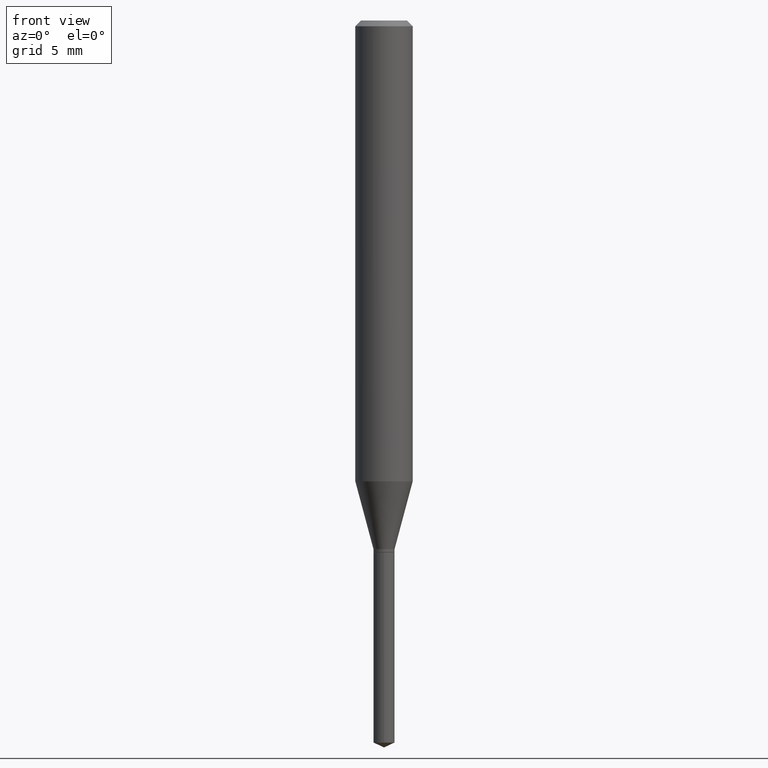
[diagram: clean part render]
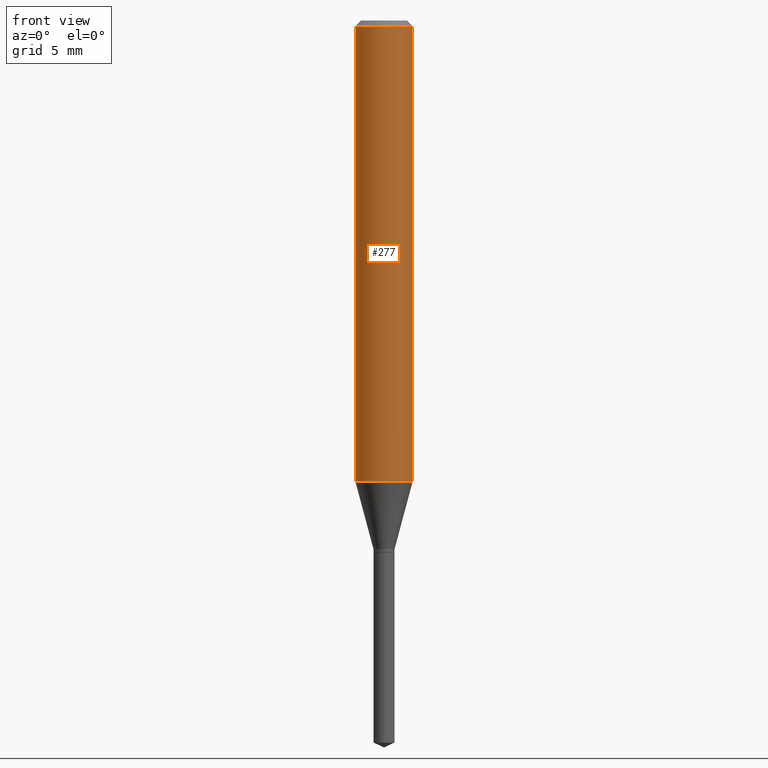
[diagram: same view with one face highlighted and labeled with its STEP entity id]
A machine part, front view. The second image highlights one B-rep face of the part: STEP entity #277.
In plain terms, the highlighted cylindrical surface (edge-blend (fillet) strip) has radius 1.4999 mm, axis along (-0, 0, 1).
Its self-contained STEP definition (entity closure, byte-faithful):
#68 = DIRECTION ( 'NONE',  ( -2.445468806185136597E-29, 3.491481338843145583E-15, 1.000000000000000000 ) ) ;
#80 = LINE ( 'NONE', #453, #218 ) ;
#101 = AXIS2_PLACEMENT_3D ( 'NONE', #113, #477, #141 ) ;
#108 = CARTESIAN_POINT ( 'NONE',  ( 2.888098660104664642E-31, -4.123439461173780879E-17, -0.01181000000000007565 ) ) ;
#113 = CARTESIAN_POINT ( 'NONE',  ( 2.319334703774938561E-29, -3.311395269602319629E-15, -0.9484212997969236891 ) ) ;
#139 = DIRECTION ( 'NONE',  ( 1.000000000000000000, -6.982962677686266711E-15, 4.876176775795935793E-29 ) ) ;
#141 = DIRECTION ( 'NONE',  ( 1.000000000000000000, -6.982962677686268288E-15, 0.000000000000000000 ) ) ;
#142 = VERTEX_POINT ( 'NONE', #357 ) ;
#147 = CARTESIAN_POINT ( 'NONE',  ( 0.05905000000000010241, -3.723739215719694549E-15, -0.9484212997969236891 ) ) ;
#150 = VERTEX_POINT ( 'NONE', #428 ) ;
#183 = ORIENTED_EDGE ( 'NONE', *, *, #395, .T. ) ;
#184 = DIRECTION ( 'NONE',  ( 1.000000000000000000, -6.982962677686268288E-15, 0.000000000000000000 ) ) ;
#207 = FACE_OUTER_BOUND ( 'NONE', #214, .T. ) ;
#212 = ORIENTED_EDGE ( 'NONE', *, *, #266, .F. ) ;
#214 = EDGE_LOOP ( 'NONE', ( #212, #321, #183, #402 ) ) ;
#218 = VECTOR ( 'NONE', #257, 39.37007874015748143 ) ;
#229 = AXIS2_PLACEMENT_3D ( 'NONE', #108, #68, #184 ) ;
#257 = DIRECTION ( 'NONE',  ( -2.445468806185136877E-29, 3.491481338843145188E-15, 1.000000000000000000 ) ) ;
#266 = EDGE_CURVE ( 'NONE', #142, #150, #329, .T. ) ;
#277 = ADVANCED_FACE ( 'NONE', ( #207 ), #369, .T. ) ;
#310 = VERTEX_POINT ( 'NONE', #407 ) ;
#314 = AXIS2_PLACEMENT_3D ( 'NONE', #489, #330, #139 ) ;
#321 = ORIENTED_EDGE ( 'NONE', *, *, #377, .T. ) ;
#327 = CARTESIAN_POINT ( 'NONE',  ( -0.05905000000000005383, 4.195754854663395423E-16, -2.904631170795524694E-30 ) ) ;
#329 = LINE ( 'NONE', #327, #355 ) ;
#330 = DIRECTION ( 'NONE',  ( -2.445468806185136597E-29, 3.491481338843145583E-15, 1.000000000000000000 ) ) ;
#355 = VECTOR ( 'NONE', #444, 39.37007874015748143 ) ;
#357 = CARTESIAN_POINT ( 'NONE',  ( -0.05905000000000010241, -2.891819784135979347E-15, -0.9484212997969236891 ) ) ;
#361 = EDGE_CURVE ( 'NONE', #150, #310, #461, .T. ) ;
#363 = VERTEX_POINT ( 'NONE', #147 ) ;
#369 = CYLINDRICAL_SURFACE ( 'NONE', #314, 0.05905000000000005383 ) ;
#377 = EDGE_CURVE ( 'NONE', #142, #363, #452, .T. ) ;
#395 = EDGE_CURVE ( 'NONE', #363, #310, #80, .T. ) ;
#402 = ORIENTED_EDGE ( 'NONE', *, *, #361, .F. ) ;
#407 = CARTESIAN_POINT ( 'NONE',  ( 0.05905000000000000526, -4.535783407291119586E-16, -0.01181000000000007565 ) ) ;
#428 = CARTESIAN_POINT ( 'NONE',  ( -0.05905000000000000526, -1.256739346640688792E-15, -0.01181000000000007565 ) ) ;
#444 = DIRECTION ( 'NONE',  ( -2.445468806185136877E-29, 3.491481338843145188E-15, 1.000000000000000000 ) ) ;
#452 = CIRCLE ( 'NONE', #101, 0.05905000000000010241 ) ;
#453 = CARTESIAN_POINT ( 'NONE',  ( 0.05905000000000005383, -4.123439461173744271E-16, 2.879382386107502672E-30 ) ) ;
#461 = CIRCLE ( 'NONE', #229, 0.05905000000000000526 ) ;
#477 = DIRECTION ( 'NONE',  ( -2.445468806185136597E-29, 3.491481338843145583E-15, 1.000000000000000000 ) ) ;
#489 = CARTESIAN_POINT ( 'NONE',  ( 0.000000000000000000, 0.000000000000000000, 0.000000000000000000 ) ) ;